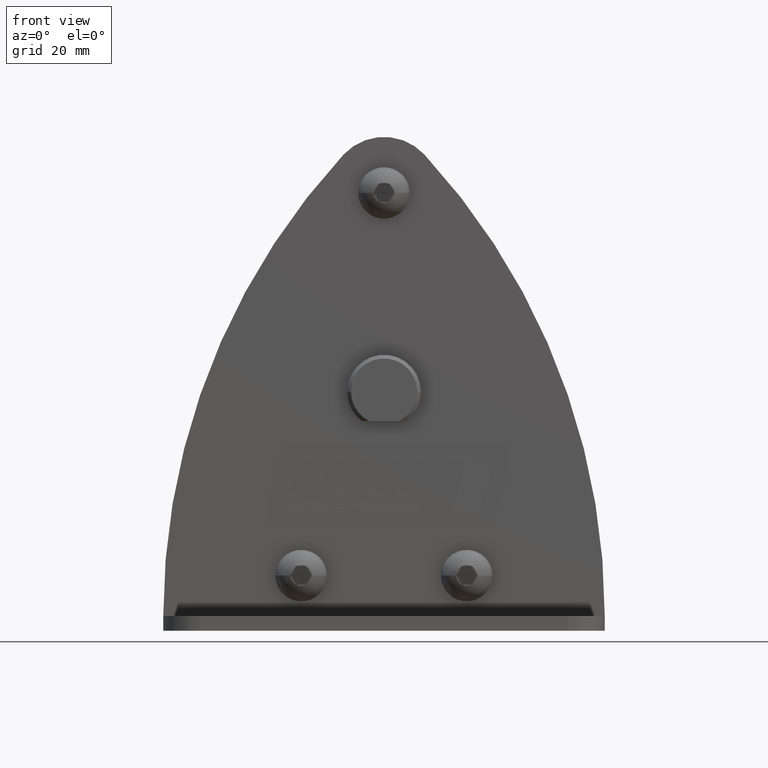
[diagram: clean part render]
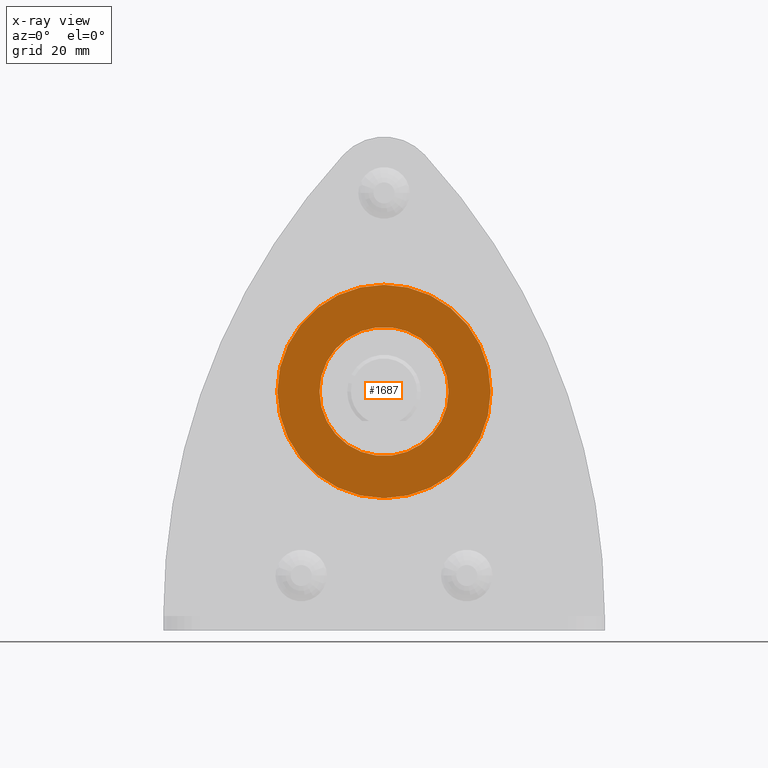
[diagram: x-ray — body ghosted, one internal face saturated and labeled with its STEP entity id]
A machine part, front view, then the same camera in x-ray: the body is ghosted and one INTERNAL B-rep face — a face not visible from any outside direction — is saturated and labeled: STEP entity #1687.
In plain terms, the highlighted planar face has unit normal (0, 1, 0).
Its self-contained STEP definition (entity closure, byte-faithful):
#1687=ADVANCED_FACE('',(#3574,#3575),#3576,.T.);
#3574=FACE_BOUND('',#5644,.T.);
#3575=FACE_OUTER_BOUND('',#5645,.T.);
#3576=PLANE('',#5646);
#5644=EDGE_LOOP('',(#11032,#11033));
#5645=EDGE_LOOP('',(#11034,#11035));
#5646=AXIS2_PLACEMENT_3D('',#11036,#11037,#11038);
#11032=ORIENTED_EDGE('',*,*,#14263,.T.);
#11033=ORIENTED_EDGE('',*,*,#12777,.T.);
#11034=ORIENTED_EDGE('',*,*,#12568,.F.);
#11035=ORIENTED_EDGE('',*,*,#14361,.F.);
#11036=CARTESIAN_POINT('',(14.5,13.0,0.0));
#11037=DIRECTION('',(0.0,1.0,0.0));
#11038=DIRECTION('',(-1.0,0.0,-0.0));
#12568=EDGE_CURVE('',#15169,#15171,#15172,.T.);
#12777=EDGE_CURVE('',#15521,#15519,#15522,.T.);
#14263=EDGE_CURVE('',#15519,#15521,#17725,.T.);
#14361=EDGE_CURVE('',#15171,#15169,#17831,.T.);
#15169=VERTEX_POINT('',#19705);
#15171=VERTEX_POINT('',#19708);
#15172=CIRCLE('',#19709,29.0);
#15519=VERTEX_POINT('',#21476);
#15521=VERTEX_POINT('',#21479);
#15522=CIRCLE('',#21480,17.55);
#17725=CIRCLE('',#24992,17.55);
#17831=CIRCLE('',#25723,29.0);
#19705=CARTESIAN_POINT('',(29.0,13.0,0.0));
#19708=CARTESIAN_POINT('',(-29.0,13.0,3.55147571752732E-015));
#19709=AXIS2_PLACEMENT_3D('',#26806,#26807,#26808);
#21476=CARTESIAN_POINT('',(17.55,13.0,0.0));
#21479=CARTESIAN_POINT('',(-17.55,13.0,-2.1492551325036E-015));
#21480=AXIS2_PLACEMENT_3D('',#27071,#27072,#27073);
#24992=AXIS2_PLACEMENT_3D('',#28728,#28729,#28730);
#25723=AXIS2_PLACEMENT_3D('',#28779,#28780,#28781);
#26806=CARTESIAN_POINT('',(0.0,13.0,0.0));
#26807=DIRECTION('',(0.0,-1.0,0.0));
#26808=DIRECTION('',(1.0,0.0,0.0));
#27071=CARTESIAN_POINT('',(0.0,13.0,0.0));
#27072=DIRECTION('',(0.0,-1.0,0.0));
#27073=DIRECTION('',(1.0,0.0,0.0));
#28728=CARTESIAN_POINT('',(0.0,13.0,0.0));
#28729=DIRECTION('',(0.0,-1.0,0.0));
#28730=DIRECTION('',(1.0,0.0,0.0));
#28779=CARTESIAN_POINT('',(0.0,13.0,0.0));
#28780=DIRECTION('',(0.0,-1.0,0.0));
#28781=DIRECTION('',(1.0,0.0,0.0));